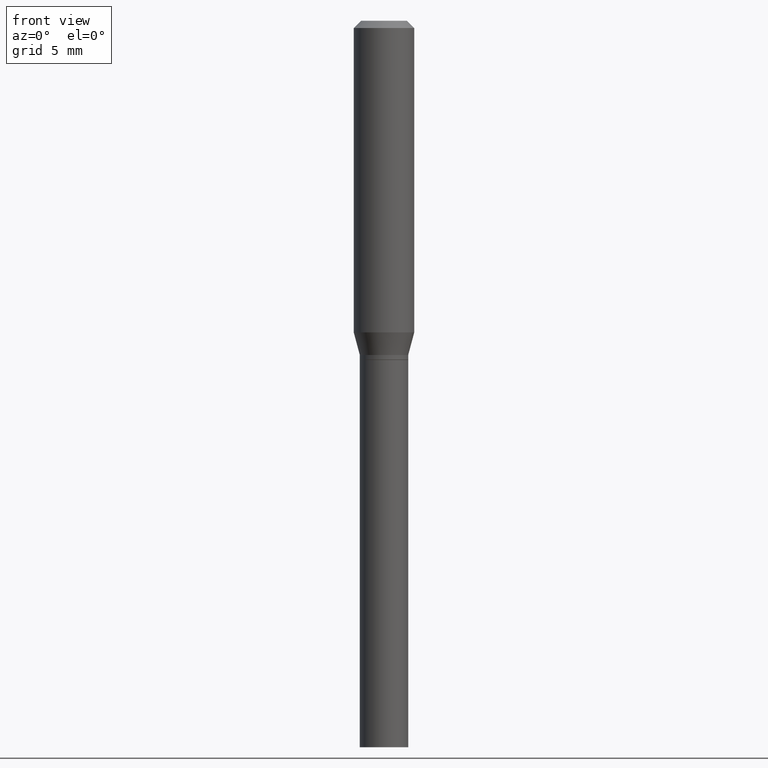
[diagram: clean part render]
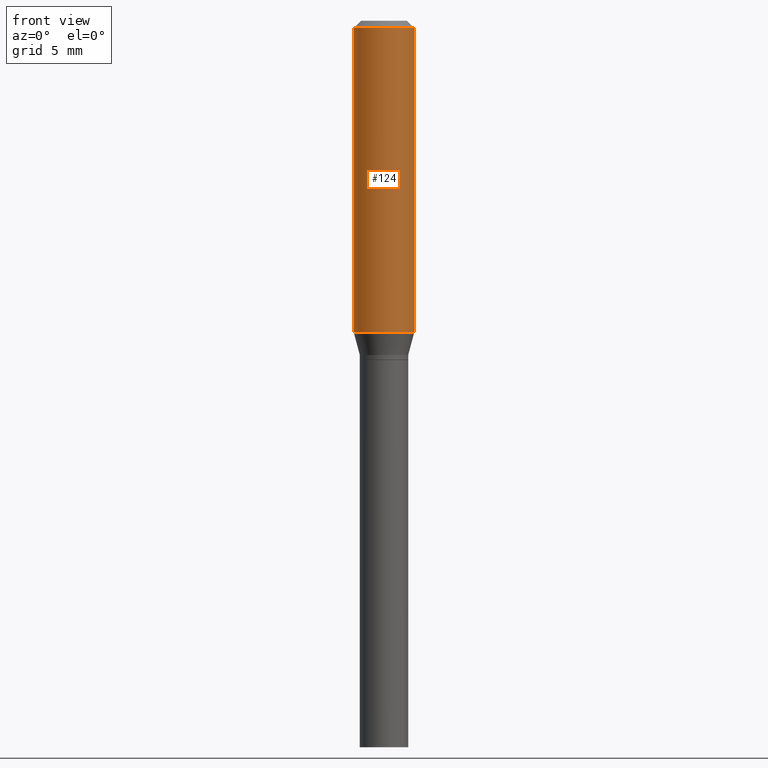
[diagram: same view with one face highlighted and labeled with its STEP entity id]
A machine part, front view. The second image highlights one B-rep face of the part: STEP entity #124.
In plain terms, the highlighted cylindrical surface (edge-blend (fillet) strip) has radius 1.5875 mm, axis along (-0, 0, 1).
Its self-contained STEP definition (entity closure, byte-faithful):
#2 = DIRECTION ( 'NONE',  ( 1.000000000000000000, -6.982962677686266711E-15, 4.876176775795935793E-29 ) ) ;
#24 = VERTEX_POINT ( 'NONE', #315 ) ;
#28 = CARTESIAN_POINT ( 'NONE',  ( 0.000000000000000000, 0.000000000000000000, 0.000000000000000000 ) ) ;
#30 = CIRCLE ( 'NONE', #295, 0.06250000000000000000 ) ;
#34 = LINE ( 'NONE', #354, #443 ) ;
#37 = VECTOR ( 'NONE', #319, 39.37007874015748143 ) ;
#42 = CARTESIAN_POINT ( 'NONE',  ( 1.573290803355148401E-29, -2.246242301923756407E-15, -0.6433493649053894092 ) ) ;
#51 = EDGE_CURVE ( 'NONE', #24, #156, #325, .T. ) ;
#55 = ORIENTED_EDGE ( 'NONE', *, *, #337, .T. ) ;
#70 = FACE_OUTER_BOUND ( 'NONE', #203, .T. ) ;
#86 = EDGE_CURVE ( 'NONE', #410, #156, #30, .T. ) ;
#87 = ORIENTED_EDGE ( 'NONE', *, *, #86, .F. ) ;
#99 = EDGE_CURVE ( 'NONE', #193, #410, #34, .T. ) ;
#103 = DIRECTION ( 'NONE',  ( 1.000000000000000000, -6.982962677686266711E-15, 0.000000000000000000 ) ) ;
#106 = DIRECTION ( 'NONE',  ( -2.445468806185136877E-29, 3.491481338843145188E-15, 1.000000000000000000 ) ) ;
#124 = ADVANCED_FACE ( 'NONE', ( #70 ), #322, .T. ) ;
#156 = VERTEX_POINT ( 'NONE', #432 ) ;
#169 = CIRCLE ( 'NONE', #179, 0.06250000000000000000 ) ;
#179 = AXIS2_PLACEMENT_3D ( 'NONE', #42, #402, #371 ) ;
#185 = AXIS2_PLACEMENT_3D ( 'NONE', #28, #283, #2 ) ;
#193 = VERTEX_POINT ( 'NONE', #374 ) ;
#203 = EDGE_LOOP ( 'NONE', ( #270, #55, #445, #87 ) ) ;
#214 = DIRECTION ( 'NONE',  ( -2.445468806185136597E-29, 3.491481338843145583E-15, 1.000000000000000000 ) ) ;
#250 = CARTESIAN_POINT ( 'NONE',  ( 0.06250000000000000000, -4.364351673553916694E-16, 3.047610484872459871E-30 ) ) ;
#270 = ORIENTED_EDGE ( 'NONE', *, *, #99, .F. ) ;
#283 = DIRECTION ( 'NONE',  ( -2.445468806185136597E-29, 3.491481338843145583E-15, 1.000000000000000000 ) ) ;
#285 = CARTESIAN_POINT ( 'NONE',  ( 3.668203209277705088E-31, -5.237222008264718399E-17, -0.01499999999999999944 ) ) ;
#295 = AXIS2_PLACEMENT_3D ( 'NONE', #285, #214, #103 ) ;
#315 = CARTESIAN_POINT ( 'NONE',  ( 0.06250000000000000000, -2.682677469279148077E-15, -0.6433493649053894092 ) ) ;
#319 = DIRECTION ( 'NONE',  ( -2.445468806185136877E-29, 3.491481338843145188E-15, 1.000000000000000000 ) ) ;
#322 = CYLINDRICAL_SURFACE ( 'NONE', #185, 0.06250000000000000000 ) ;
#325 = LINE ( 'NONE', #250, #37 ) ;
#336 = CARTESIAN_POINT ( 'NONE',  ( -0.06250000000000000000, -7.052180511531390284E-16, -0.01499999999999999944 ) ) ;
#337 = EDGE_CURVE ( 'NONE', #193, #24, #169, .T. ) ;
#354 = CARTESIAN_POINT ( 'NONE',  ( -0.06250000000000000000, 4.440892098500626162E-16, -3.074334431409316114E-30 ) ) ;
#371 = DIRECTION ( 'NONE',  ( 1.000000000000000000, -6.982962677686262766E-15, 0.000000000000000000 ) ) ;
#374 = CARTESIAN_POINT ( 'NONE',  ( -0.06250000000000000000, -1.802153092073694185E-15, -0.6433493649053894092 ) ) ;
#402 = DIRECTION ( 'NONE',  ( -2.445468806185136597E-29, 3.491481338843145583E-15, 1.000000000000000000 ) ) ;
#410 = VERTEX_POINT ( 'NONE', #336 ) ;
#432 = CARTESIAN_POINT ( 'NONE',  ( 0.06250000000000000000, -4.888073874380388472E-16, -0.01499999999999999944 ) ) ;
#443 = VECTOR ( 'NONE', #106, 39.37007874015748143 ) ;
#445 = ORIENTED_EDGE ( 'NONE', *, *, #51, .T. ) ;